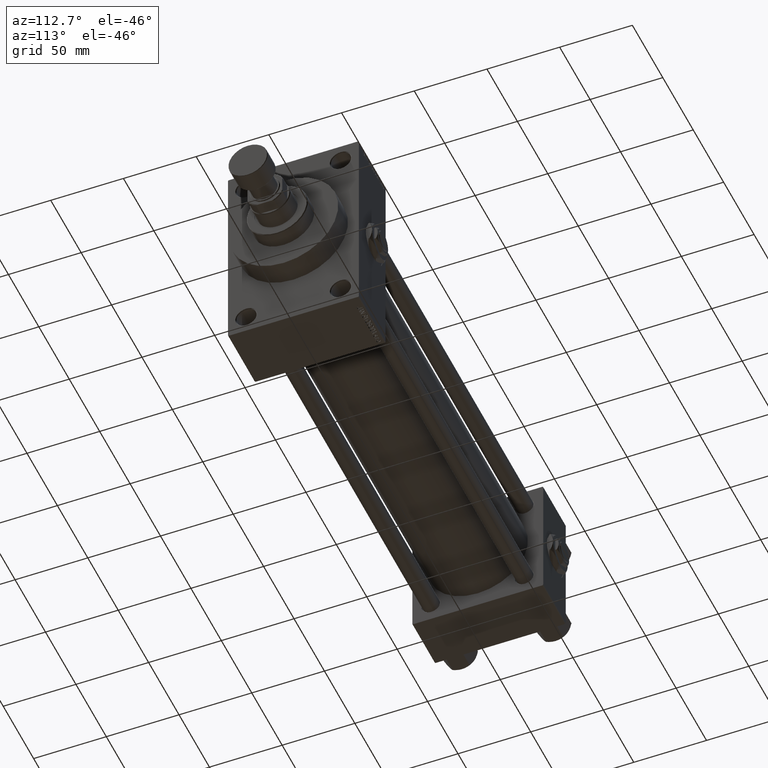
[diagram: clean part render]
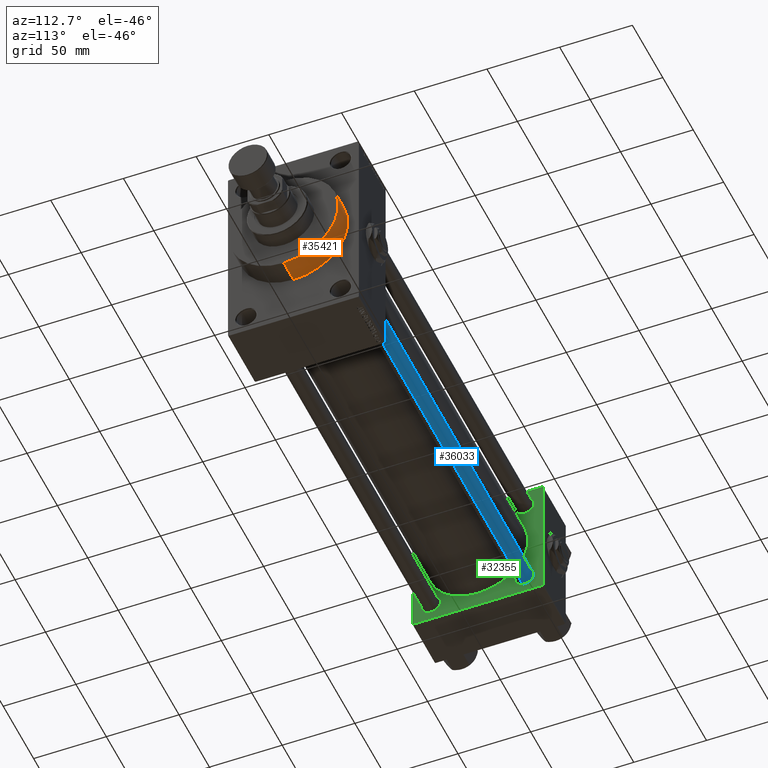
[diagram: same view with three faces highlighted in distinct colors, each labeled with its STEP entity id]
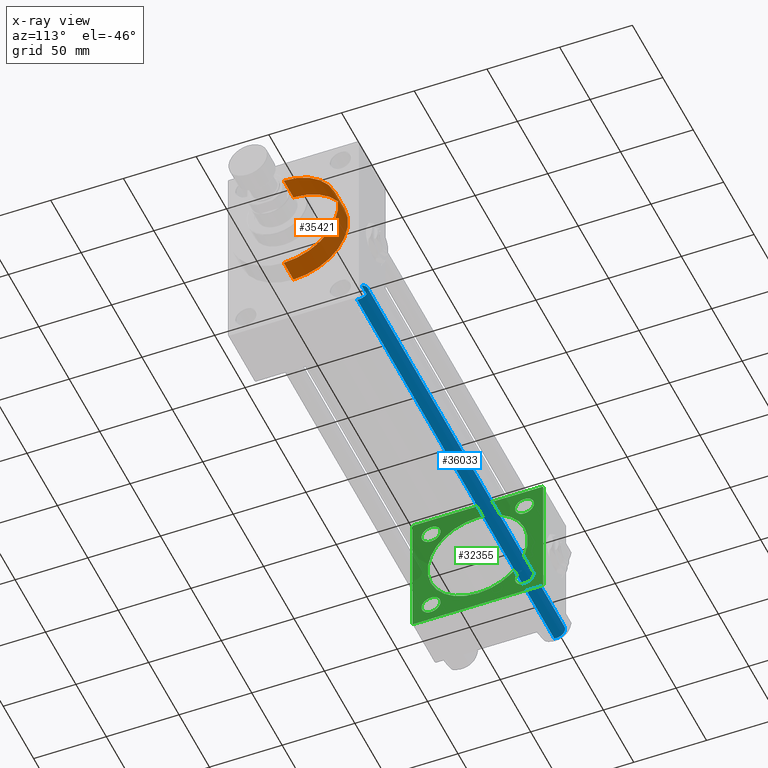
[diagram: x-ray of the same camera — body ghosted, the three highlighted faces saturated]
A machine part, auxiliary view with three faces highlighted in distinct colors.
The next image is the same camera in x-ray (body ghosted, the three faces saturated) — at least one of them is partly hidden behind the body in this view.
Their STEP definitions:

[orange] entity #35421 — the highlighted cylindrical surface (partial cylindrical patch) has radius 37.5 mm, axis along (-1, -0, -0).
#3576 = CIRCLE ( 'NONE', #14008, 37.50000000000000711 ) ;
#6912 = EDGE_LOOP ( 'NONE', ( #9577, #25419, #37376, #17855 ) ) ;
#6916 = DIRECTION ( 'NONE',  ( 1.000000000000000000, 0.000000000000000000, 0.000000000000000000 ) ) ;
#6952 = DIRECTION ( 'NONE',  ( -1.000000000000000000, -0.000000000000000000, -0.000000000000000000 ) ) ;
#9301 = DIRECTION ( 'NONE',  ( -1.000000000000000000, -0.000000000000000000, -0.000000000000000000 ) ) ;
#9577 = ORIENTED_EDGE ( 'NONE', *, *, #45776, .F. ) ;
#9751 = CARTESIAN_POINT ( 'NONE',  ( 339.9999999999999432, 0.000000000000000000, 0.000000000000000000 ) ) ;
#10123 = CARTESIAN_POINT ( 'NONE',  ( 356.0000000000000000, 0.000000000000000000, 0.000000000000000000 ) ) ;
#10590 = CARTESIAN_POINT ( 'NONE',  ( 356.0000000000000000, 4.592425496802575156E-15, -37.50000000000000711 ) ) ;
#13906 = DIRECTION ( 'NONE',  ( 1.000000000000000000, 0.000000000000000000, 0.000000000000000000 ) ) ;
#14008 = AXIS2_PLACEMENT_3D ( 'NONE', #9751, #6916, #25092 ) ;
#14163 = DIRECTION ( 'NONE',  ( 0.000000000000000000, 0.000000000000000000, -1.000000000000000000 ) ) ;
#16267 = CARTESIAN_POINT ( 'NONE',  ( 356.0000000000000000, 4.592425496802575156E-15, -37.50000000000000711 ) ) ;
#16864 = EDGE_CURVE ( 'NONE', #38333, #41792, #18399, .T. ) ;
#17855 = ORIENTED_EDGE ( 'NONE', *, *, #28966, .F. ) ;
#18399 = LINE ( 'NONE', #10590, #48876 ) ;
#18769 = CARTESIAN_POINT ( 'NONE',  ( 356.0000000000000000, 0.000000000000000000, 37.50000000000000711 ) ) ;
#21113 = FACE_OUTER_BOUND ( 'NONE', #6912, .T. ) ;
#22046 = AXIS2_PLACEMENT_3D ( 'NONE', #10123, #13906, #14163 ) ;
#25092 = DIRECTION ( 'NONE',  ( 0.000000000000000000, 0.000000000000000000, -1.000000000000000000 ) ) ;
#25419 = ORIENTED_EDGE ( 'NONE', *, *, #16864, .T. ) ;
#25926 = DIRECTION ( 'NONE',  ( -1.000000000000000000, -0.000000000000000000, -0.000000000000000000 ) ) ;
#28966 = EDGE_CURVE ( 'NONE', #40374, #46558, #38385, .T. ) ;
#32261 = CARTESIAN_POINT ( 'NONE',  ( 339.9999999999999432, 0.000000000000000000, 37.50000000000000711 ) ) ;
#35421 = ADVANCED_FACE ( 'NONE', ( #21113 ), #47288, .T. ) ;
#37220 = AXIS2_PLACEMENT_3D ( 'NONE', #39730, #9301, #43750 ) ;
#37376 = ORIENTED_EDGE ( 'NONE', *, *, #46315, .T. ) ;
#38333 = VERTEX_POINT ( 'NONE', #16267 ) ;
#38385 = LINE ( 'NONE', #18769, #40342 ) ;
#39730 = CARTESIAN_POINT ( 'NONE',  ( 356.0000000000000000, 0.000000000000000000, 0.000000000000000000 ) ) ;
#40342 = VECTOR ( 'NONE', #6952, 1000.000000000000000 ) ;
#40374 = VERTEX_POINT ( 'NONE', #42325 ) ;
#41792 = VERTEX_POINT ( 'NONE', #43208 ) ;
#42325 = CARTESIAN_POINT ( 'NONE',  ( 356.0000000000000000, 0.000000000000000000, 37.50000000000000711 ) ) ;
#43208 = CARTESIAN_POINT ( 'NONE',  ( 339.9999999999999432, 4.592425496802575156E-15, -37.50000000000000711 ) ) ;
#43750 = DIRECTION ( 'NONE',  ( 0.000000000000000000, 0.000000000000000000, 1.000000000000000000 ) ) ;
#45776 = EDGE_CURVE ( 'NONE', #38333, #40374, #48527, .T. ) ;
#46315 = EDGE_CURVE ( 'NONE', #41792, #46558, #3576, .T. ) ;
#46558 = VERTEX_POINT ( 'NONE', #32261 ) ;
#47288 = CYLINDRICAL_SURFACE ( 'NONE', #37220, 37.50000000000000711 ) ;
#48527 = CIRCLE ( 'NONE', #22046, 37.50000000000000711 ) ;
#48876 = VECTOR ( 'NONE', #25926, 1000.000000000000000 ) ;

[blue] entity #36033 — the highlighted cylindrical surface (edge-blend (fillet) strip) has radius 6 mm, axis along (1, -0, 0).
#207 = ORIENTED_EDGE ( 'NONE', *, *, #35754, .T. ) ;
#779 = EDGE_CURVE ( 'NONE', #29036, #41744, #43980, .T. ) ;
#1861 = AXIS2_PLACEMENT_3D ( 'NONE', #46919, #46427, #19034 ) ;
#2857 = VECTOR ( 'NONE', #4177, 1000.000000000000000 ) ;
#4177 = DIRECTION ( 'NONE',  ( -0.000000000000000000, -0.000000000000000000, -1.000000000000000000 ) ) ;
#4419 = CYLINDRICAL_SURFACE ( 'NONE', #1861, 6.000000000000000888 ) ;
#5069 = CARTESIAN_POINT ( 'NONE',  ( -6.000000000000000888, 0.000000000000000000, 0.5000000000000004441 ) ) ;
#6217 = ORIENTED_EDGE ( 'NONE', *, *, #22045, .T. ) ;
#9575 = ORIENTED_EDGE ( 'NONE', *, *, #779, .T. ) ;
#11083 = CARTESIAN_POINT ( 'NONE',  ( 0.000000000000000000, 0.000000000000000000, 324.5000000000001137 ) ) ;
#11171 = AXIS2_PLACEMENT_3D ( 'NONE', #11083, #26167, #26928 ) ;
#12480 = CARTESIAN_POINT ( 'NONE',  ( 6.000000000000000888, 7.347880794884120722E-16, 324.5000000000001137 ) ) ;
#14188 = EDGE_CURVE ( 'NONE', #47185, #23430, #46675, .T. ) ;
#16806 = DIRECTION ( 'NONE',  ( 1.000000000000000000, 0.000000000000000000, 0.000000000000000000 ) ) ;
#17532 = CARTESIAN_POINT ( 'NONE',  ( 0.000000000000000000, 0.000000000000000000, 0.5000000000000004441 ) ) ;
#19034 = DIRECTION ( 'NONE',  ( -1.000000000000000000, 0.000000000000000000, 0.000000000000000000 ) ) ;
#22045 = EDGE_CURVE ( 'NONE', #47185, #29036, #35309, .T. ) ;
#23315 = CARTESIAN_POINT ( 'NONE',  ( -6.000000000000000888, 0.000000000000000000, 325.0000000000000000 ) ) ;
#23430 = VERTEX_POINT ( 'NONE', #5069 ) ;
#26167 = DIRECTION ( 'NONE',  ( 0.000000000000000000, 0.000000000000000000, -1.000000000000000000 ) ) ;
#26928 = DIRECTION ( 'NONE',  ( 1.000000000000000000, 0.000000000000000000, 0.000000000000000000 ) ) ;
#27069 = FACE_OUTER_BOUND ( 'NONE', #34292, .T. ) ;
#28098 = CARTESIAN_POINT ( 'NONE',  ( 6.000000000000000888, 7.347880794884120722E-16, 0.5000000000000004441 ) ) ;
#28390 = CIRCLE ( 'NONE', #46897, 6.000000000000000888 ) ;
#29036 = VERTEX_POINT ( 'NONE', #12480 ) ;
#29074 = DIRECTION ( 'NONE',  ( -0.000000000000000000, -0.000000000000000000, 1.000000000000000000 ) ) ;
#34292 = EDGE_LOOP ( 'NONE', ( #6217, #9575, #207, #40896 ) ) ;
#35309 = CIRCLE ( 'NONE', #11171, 6.000000000000000888 ) ;
#35754 = EDGE_CURVE ( 'NONE', #41744, #23430, #28390, .T. ) ;
#36033 = ADVANCED_FACE ( 'NONE', ( #27069 ), #4419, .T. ) ;
#37429 = CARTESIAN_POINT ( 'NONE',  ( 6.000000000000000888, 7.347880794884120722E-16, 325.0000000000000000 ) ) ;
#39955 = CARTESIAN_POINT ( 'NONE',  ( -6.000000000000000888, 0.000000000000000000, 324.5000000000001137 ) ) ;
#40896 = ORIENTED_EDGE ( 'NONE', *, *, #14188, .F. ) ;
#41744 = VERTEX_POINT ( 'NONE', #28098 ) ;
#42709 = VECTOR ( 'NONE', #44476, 1000.000000000000000 ) ;
#43980 = LINE ( 'NONE', #37429, #42709 ) ;
#44476 = DIRECTION ( 'NONE',  ( -0.000000000000000000, -0.000000000000000000, -1.000000000000000000 ) ) ;
#46427 = DIRECTION ( 'NONE',  ( -0.000000000000000000, -0.000000000000000000, -1.000000000000000000 ) ) ;
#46675 = LINE ( 'NONE', #23315, #2857 ) ;
#46897 = AXIS2_PLACEMENT_3D ( 'NONE', #17532, #29074, #16806 ) ;
#46919 = CARTESIAN_POINT ( 'NONE',  ( 0.000000000000000000, 0.000000000000000000, 325.0000000000000000 ) ) ;
#47185 = VERTEX_POINT ( 'NONE', #39955 ) ;

[green] entity #32355 — the highlighted planar face has unit normal (-1, 0, 0).
#940 = EDGE_CURVE ( 'NONE', #46579, #23455, #20564, .T. ) ;
#1281 = VECTOR ( 'NONE', #9889, 1000.000000000000000 ) ;
#1577 = LINE ( 'NONE', #36068, #40588 ) ;
#1595 = LINE ( 'NONE', #28045, #19631 ) ;
#2010 = ORIENTED_EDGE ( 'NONE', *, *, #42464, .T. ) ;
#2290 = DIRECTION ( 'NONE',  ( -0.000000000000000000, 0.7071067811865474617, 0.7071067811865474617 ) ) ;
#2351 = VECTOR ( 'NONE', #28741, 1000.000000000000000 ) ;
#2358 = ORIENTED_EDGE ( 'NONE', *, *, #46057, .T. ) ;
#2737 = DIRECTION ( 'NONE',  ( 0.000000000000000000, 0.000000000000000000, 1.000000000000000000 ) ) ;
#3019 = EDGE_CURVE ( 'NONE', #49147, #8795, #22679, .T. ) ;
#3697 = VERTEX_POINT ( 'NONE', #28245 ) ;
#4063 = DIRECTION ( 'NONE',  ( -1.000000000000000000, 0.000000000000000000, -0.000000000000000000 ) ) ;
#4369 = AXIS2_PLACEMENT_3D ( 'NONE', #23204, #4063, #15920 ) ;
#5013 = AXIS2_PLACEMENT_3D ( 'NONE', #37708, #25393, #2737 ) ;
#5114 = DIRECTION ( 'NONE',  ( 0.000000000000000000, 0.000000000000000000, 1.000000000000000000 ) ) ;
#5257 = CIRCLE ( 'NONE', #18950, 6.500000000000061284 ) ;
#5609 = LINE ( 'NONE', #20955, #2351 ) ;
#6142 = AXIS2_PLACEMENT_3D ( 'NONE', #31235, #15409, #11626 ) ;
#6939 = CARTESIAN_POINT ( 'NONE',  ( 37.00000000000000000, -32.14999999999997726, -25.64999999999994884 ) ) ;
#8545 = CIRCLE ( 'NONE', #49490, 34.50000000000000000 ) ;
#8647 = CARTESIAN_POINT ( 'NONE',  ( 37.00000000000000000, 44.99999999999998579, -44.49999999999998579 ) ) ;
#8795 = VERTEX_POINT ( 'NONE', #31424 ) ;
#9390 = ORIENTED_EDGE ( 'NONE', *, *, #40176, .F. ) ;
#9548 = LINE ( 'NONE', #35972, #27656 ) ;
#9889 = DIRECTION ( 'NONE',  ( 0.000000000000000000, -1.000000000000000000, -1.541976423090495633E-16 ) ) ;
#10272 = DIRECTION ( 'NONE',  ( 0.000000000000000000, -1.000000000000000000, -1.541976423090495387E-16 ) ) ;
#10453 = EDGE_CURVE ( 'NONE', #33835, #35757, #5257, .T. ) ;
#10824 = DIRECTION ( 'NONE',  ( 0.000000000000000000, 0.000000000000000000, 1.000000000000000000 ) ) ;
#10907 = VECTOR ( 'NONE', #10272, 1000.000000000000000 ) ;
#11394 = EDGE_CURVE ( 'NONE', #15364, #41675, #8545, .T. ) ;
#11626 = DIRECTION ( 'NONE',  ( 0.000000000000000000, 0.000000000000000000, 1.000000000000000000 ) ) ;
#11653 = CARTESIAN_POINT ( 'NONE',  ( 37.00000000000000000, 32.14999999999999147, -32.15000000000000568 ) ) ;
#12283 = VERTEX_POINT ( 'NONE', #6939 ) ;
#12325 = EDGE_LOOP ( 'NONE', ( #18179, #18103 ) ) ;
#13088 = DIRECTION ( 'NONE',  ( 0.000000000000000000, 0.7071067811865474617, -0.7071067811865474617 ) ) ;
#13400 = FACE_OUTER_BOUND ( 'NONE', #17807, .T. ) ;
#13438 = CARTESIAN_POINT ( 'NONE',  ( 36.99999999999997868, -2.602085213965210642E-15, 0.000000000000000000 ) ) ;
#13808 = LINE ( 'NONE', #25846, #10907 ) ;
#14189 = DIRECTION ( 'NONE',  ( 1.000000000000000000, -0.000000000000000000, 0.000000000000000000 ) ) ;
#14364 = DIRECTION ( 'NONE',  ( -1.000000000000000000, 0.000000000000000000, -0.000000000000000000 ) ) ;
#15024 = DIRECTION ( 'NONE',  ( 0.000000000000000000, 0.000000000000000000, 1.000000000000000000 ) ) ;
#15364 = VERTEX_POINT ( 'NONE', #38342 ) ;
#15409 = DIRECTION ( 'NONE',  ( -1.000000000000000000, 0.000000000000000000, -0.000000000000000000 ) ) ;
#15624 = EDGE_CURVE ( 'NONE', #8795, #49147, #18176, .T. ) ;
#15710 = AXIS2_PLACEMENT_3D ( 'NONE', #36524, #48105, #5114 ) ;
#15920 = DIRECTION ( 'NONE',  ( 0.000000000000000000, 0.000000000000000000, 1.000000000000000000 ) ) ;
#15995 = CIRCLE ( 'NONE', #33493, 6.500000000000061284 ) ;
#16304 = VECTOR ( 'NONE', #2290, 1000.000000000000114 ) ;
#16979 = DIRECTION ( 'NONE',  ( 0.000000000000000000, -0.7071067811865474617, 0.7071067811865474617 ) ) ;
#17331 = CARTESIAN_POINT ( 'NONE',  ( 37.00000000000000000, 44.49999999999998579, -44.99999999999998579 ) ) ;
#17441 = ORIENTED_EDGE ( 'NONE', *, *, #940, .T. ) ;
#17480 = VERTEX_POINT ( 'NONE', #48950 ) ;
#17615 = EDGE_CURVE ( 'NONE', #35757, #33835, #15995, .T. ) ;
#17655 = FACE_BOUND ( 'NONE', #12325, .T. ) ;
#17807 = EDGE_LOOP ( 'NONE', ( #9390, #25214, #40712, #20843, #49136, #17441, #26948, #45396 ) ) ;
#17870 = CARTESIAN_POINT ( 'NONE',  ( 37.00000000000000000, -32.14999999999997726, 32.15000000000001279 ) ) ;
#17903 = FACE_BOUND ( 'NONE', #24545, .T. ) ;
#18103 = ORIENTED_EDGE ( 'NONE', *, *, #27068, .F. ) ;
#18176 = CIRCLE ( 'NONE', #6142, 6.500000000000061284 ) ;
#18179 = ORIENTED_EDGE ( 'NONE', *, *, #11394, .F. ) ;
#18950 = AXIS2_PLACEMENT_3D ( 'NONE', #11653, #19211, #33768 ) ;
#19211 = DIRECTION ( 'NONE',  ( -1.000000000000000000, 0.000000000000000000, -0.000000000000000000 ) ) ;
#19329 = CARTESIAN_POINT ( 'NONE',  ( 36.99999999999997868, 1.622946243093158675E-15, -34.50000000000000000 ) ) ;
#19631 = VECTOR ( 'NONE', #16979, 1000.000000000000114 ) ;
#20564 = LINE ( 'NONE', #47450, #25811 ) ;
#20843 = ORIENTED_EDGE ( 'NONE', *, *, #36082, .T. ) ;
#20955 = CARTESIAN_POINT ( 'NONE',  ( 37.00000000000000000, -45.00000000000000711, 45.00000000000000000 ) ) ;
#21181 = FACE_BOUND ( 'NONE', #25018, .T. ) ;
#22679 = CIRCLE ( 'NONE', #5013, 6.500000000000061284 ) ;
#23204 = CARTESIAN_POINT ( 'NONE',  ( 37.00000000000000000, -32.14999999999997726, 32.15000000000001279 ) ) ;
#23210 = EDGE_CURVE ( 'NONE', #23455, #17480, #5609, .T. ) ;
#23277 = ORIENTED_EDGE ( 'NONE', *, *, #43318, .T. ) ;
#23382 = ORIENTED_EDGE ( 'NONE', *, *, #3019, .T. ) ;
#23455 = VERTEX_POINT ( 'NONE', #24434 ) ;
#24434 = CARTESIAN_POINT ( 'NONE',  ( 37.00000000000000000, -45.00000000000000711, 44.49999999999997158 ) ) ;
#24545 = EDGE_LOOP ( 'NONE', ( #23277, #25120 ) ) ;
#24941 = DIRECTION ( 'NONE',  ( -1.000000000000000000, 0.000000000000000000, -0.000000000000000000 ) ) ;
#25018 = EDGE_LOOP ( 'NONE', ( #2010, #2358 ) ) ;
#25120 = ORIENTED_EDGE ( 'NONE', *, *, #39729, .T. ) ;
#25123 = CARTESIAN_POINT ( 'NONE',  ( 37.00000000000000000, 44.99999999999998579, -44.49999999999995737 ) ) ;
#25192 = FACE_BOUND ( 'NONE', #42347, .T. ) ;
#25214 = ORIENTED_EDGE ( 'NONE', *, *, #29388, .T. ) ;
#25393 = DIRECTION ( 'NONE',  ( -1.000000000000000000, 0.000000000000000000, -0.000000000000000000 ) ) ;
#25811 = VECTOR ( 'NONE', #31366, 1000.000000000000114 ) ;
#25846 = CARTESIAN_POINT ( 'NONE',  ( 37.00000000000000000, 44.99999999999998579, 45.00000000000001421 ) ) ;
#25897 = DIRECTION ( 'NONE',  ( 0.000000000000000000, 0.000000000000000000, 1.000000000000000000 ) ) ;
#26119 = CIRCLE ( 'NONE', #15710, 6.500000000000061284 ) ;
#26861 = VERTEX_POINT ( 'NONE', #31589 ) ;
#26948 = ORIENTED_EDGE ( 'NONE', *, *, #23210, .T. ) ;
#27068 = EDGE_CURVE ( 'NONE', #41675, #15364, #48325, .T. ) ;
#27524 = CARTESIAN_POINT ( 'NONE',  ( 37.00000000000000000, -44.49999999999995737, 45.00000000000000000 ) ) ;
#27656 = VECTOR ( 'NONE', #13088, 1000.000000000000114 ) ;
#28045 = CARTESIAN_POINT ( 'NONE',  ( 37.00000000000000000, 44.49999999999998579, 45.00000000000001421 ) ) ;
#28245 = CARTESIAN_POINT ( 'NONE',  ( 37.00000000000000000, -32.14999999999997726, 38.65000000000007674 ) ) ;
#28741 = DIRECTION ( 'NONE',  ( 0.000000000000000000, 7.709882115452476934E-17, -1.000000000000000000 ) ) ;
#28835 = CARTESIAN_POINT ( 'NONE',  ( 37.00000000000000000, -32.14999999999997726, 25.64999999999994884 ) ) ;
#29388 = EDGE_CURVE ( 'NONE', #40787, #37025, #43101, .T. ) ;
#29489 = VERTEX_POINT ( 'NONE', #33226 ) ;
#29886 = AXIS2_PLACEMENT_3D ( 'NONE', #44063, #24941, #36505 ) ;
#30724 = ORIENTED_EDGE ( 'NONE', *, *, #15624, .T. ) ;
#31235 = CARTESIAN_POINT ( 'NONE',  ( 37.00000000000000000, 32.14999999999999147, 32.15000000000000568 ) ) ;
#31366 = DIRECTION ( 'NONE',  ( -0.000000000000000000, -0.7071067811865425767, -0.7071067811865524577 ) ) ;
#31424 = CARTESIAN_POINT ( 'NONE',  ( 37.00000000000000000, 32.14999999999999147, 25.64999999999994529 ) ) ;
#31460 = AXIS2_PLACEMENT_3D ( 'NONE', #34803, #46381, #39094 ) ;
#31589 = CARTESIAN_POINT ( 'NONE',  ( 37.00000000000000000, 44.99999999999998579, 44.50000000000001421 ) ) ;
#32355 = ADVANCED_FACE ( 'NONE', ( #17903, #25192, #21181, #40528, #17655, #13400 ), #44561, .F. ) ;
#32653 = CIRCLE ( 'NONE', #40705, 6.500000000000061284 ) ;
#32820 = VERTEX_POINT ( 'NONE', #28835 ) ;
#33226 = CARTESIAN_POINT ( 'NONE',  ( 37.00000000000000000, -44.49999999999995737, -45.00000000000000000 ) ) ;
#33493 = AXIS2_PLACEMENT_3D ( 'NONE', #46432, #42657, #15024 ) ;
#33768 = DIRECTION ( 'NONE',  ( 0.000000000000000000, 0.000000000000000000, 1.000000000000000000 ) ) ;
#33835 = VERTEX_POINT ( 'NONE', #34115 ) ;
#33939 = DIRECTION ( 'NONE',  ( -1.000000000000000000, 0.000000000000000000, -0.000000000000000000 ) ) ;
#34115 = CARTESIAN_POINT ( 'NONE',  ( 37.00000000000000000, 32.14999999999999147, -25.64999999999994529 ) ) ;
#34803 = CARTESIAN_POINT ( 'NONE',  ( 36.99999999999997868, -2.602085213965210642E-15, 0.000000000000000000 ) ) ;
#35757 = VERTEX_POINT ( 'NONE', #35905 ) ;
#35905 = CARTESIAN_POINT ( 'NONE',  ( 37.00000000000000000, 32.14999999999999147, -38.65000000000006963 ) ) ;
#35972 = CARTESIAN_POINT ( 'NONE',  ( 37.00000000000000000, -44.49999999999998579, -45.00000000000000000 ) ) ;
#36068 = CARTESIAN_POINT ( 'NONE',  ( 37.00000000000000000, 44.99999999999998579, 45.00000000000001421 ) ) ;
#36082 = EDGE_CURVE ( 'NONE', #26861, #49385, #1595, .T. ) ;
#36458 = EDGE_CURVE ( 'NONE', #17480, #29489, #9548, .T. ) ;
#36505 = DIRECTION ( 'NONE',  ( -0.000000000000000000, 0.000000000000000000, 1.000000000000000000 ) ) ;
#36524 = CARTESIAN_POINT ( 'NONE',  ( 37.00000000000000000, -32.14999999999997726, -32.15000000000001279 ) ) ;
#37025 = VERTEX_POINT ( 'NONE', #25123 ) ;
#37102 = CARTESIAN_POINT ( 'NONE',  ( 37.00000000000000000, 32.14999999999999147, 38.65000000000006963 ) ) ;
#37213 = AXIS2_PLACEMENT_3D ( 'NONE', #41249, #14364, #10824 ) ;
#37708 = CARTESIAN_POINT ( 'NONE',  ( 37.00000000000000000, 32.14999999999999147, 32.15000000000000568 ) ) ;
#38342 = CARTESIAN_POINT ( 'NONE',  ( 36.99999999999997868, -2.602085213965210642E-15, 34.50000000000000000 ) ) ;
#38422 = LINE ( 'NONE', #39355, #1281 ) ;
#39094 = DIRECTION ( 'NONE',  ( 0.000000000000000000, 0.000000000000000000, 1.000000000000000000 ) ) ;
#39319 = EDGE_LOOP ( 'NONE', ( #30724, #23382 ) ) ;
#39355 = CARTESIAN_POINT ( 'NONE',  ( 37.00000000000000000, 44.99999999999998579, -44.99999999999998579 ) ) ;
#39729 = EDGE_CURVE ( 'NONE', #12283, #45330, #26119, .T. ) ;
#40176 = EDGE_CURVE ( 'NONE', #40787, #29489, #38422, .T. ) ;
#40528 = FACE_BOUND ( 'NONE', #39319, .T. ) ;
#40572 = DIRECTION ( 'NONE',  ( 0.000000000000000000, 0.000000000000000000, 1.000000000000000000 ) ) ;
#40588 = VECTOR ( 'NONE', #43616, 1000.000000000000000 ) ;
#40705 = AXIS2_PLACEMENT_3D ( 'NONE', #17870, #33939, #25897 ) ;
#40712 = ORIENTED_EDGE ( 'NONE', *, *, #42930, .F. ) ;
#40787 = VERTEX_POINT ( 'NONE', #17331 ) ;
#40847 = EDGE_CURVE ( 'NONE', #49385, #46579, #13808, .T. ) ;
#41249 = CARTESIAN_POINT ( 'NONE',  ( 37.00000000000000000, -32.14999999999997726, -32.15000000000001279 ) ) ;
#41412 = CARTESIAN_POINT ( 'NONE',  ( 37.00000000000000000, -32.14999999999997726, -38.65000000000007674 ) ) ;
#41675 = VERTEX_POINT ( 'NONE', #19329 ) ;
#42347 = EDGE_LOOP ( 'NONE', ( #45877, #47183 ) ) ;
#42464 = EDGE_CURVE ( 'NONE', #32820, #3697, #32653, .T. ) ;
#42657 = DIRECTION ( 'NONE',  ( -1.000000000000000000, 0.000000000000000000, -0.000000000000000000 ) ) ;
#42930 = EDGE_CURVE ( 'NONE', #26861, #37025, #1577, .T. ) ;
#43101 = LINE ( 'NONE', #8647, #16304 ) ;
#43318 = EDGE_CURVE ( 'NONE', #45330, #12283, #47663, .T. ) ;
#43616 = DIRECTION ( 'NONE',  ( 0.000000000000000000, 0.000000000000000000, -1.000000000000000000 ) ) ;
#44063 = CARTESIAN_POINT ( 'NONE',  ( 37.00000000000000000, 0.000000000000000000, 0.000000000000000000 ) ) ;
#44561 = PLANE ( 'NONE',  #29886 ) ;
#45330 = VERTEX_POINT ( 'NONE', #41412 ) ;
#45331 = CIRCLE ( 'NONE', #4369, 6.500000000000061284 ) ;
#45396 = ORIENTED_EDGE ( 'NONE', *, *, #36458, .T. ) ;
#45877 = ORIENTED_EDGE ( 'NONE', *, *, #17615, .T. ) ;
#46057 = EDGE_CURVE ( 'NONE', #3697, #32820, #45331, .T. ) ;
#46381 = DIRECTION ( 'NONE',  ( 1.000000000000000000, -0.000000000000000000, 0.000000000000000000 ) ) ;
#46432 = CARTESIAN_POINT ( 'NONE',  ( 37.00000000000000000, 32.14999999999999147, -32.15000000000000568 ) ) ;
#46579 = VERTEX_POINT ( 'NONE', #27524 ) ;
#47183 = ORIENTED_EDGE ( 'NONE', *, *, #10453, .T. ) ;
#47450 = CARTESIAN_POINT ( 'NONE',  ( 37.00000000000000000, -45.00000000000000711, 44.49999999999997158 ) ) ;
#47663 = CIRCLE ( 'NONE', #37213, 6.500000000000061284 ) ;
#48105 = DIRECTION ( 'NONE',  ( -1.000000000000000000, 0.000000000000000000, -0.000000000000000000 ) ) ;
#48325 = CIRCLE ( 'NONE', #31460, 34.50000000000000000 ) ;
#48864 = CARTESIAN_POINT ( 'NONE',  ( 37.00000000000000000, 44.49999999999998579, 45.00000000000001421 ) ) ;
#48950 = CARTESIAN_POINT ( 'NONE',  ( 37.00000000000000000, -45.00000000000000000, -44.49999999999995737 ) ) ;
#49136 = ORIENTED_EDGE ( 'NONE', *, *, #40847, .T. ) ;
#49147 = VERTEX_POINT ( 'NONE', #37102 ) ;
#49385 = VERTEX_POINT ( 'NONE', #48864 ) ;
#49490 = AXIS2_PLACEMENT_3D ( 'NONE', #13438, #14189, #40572 ) ;